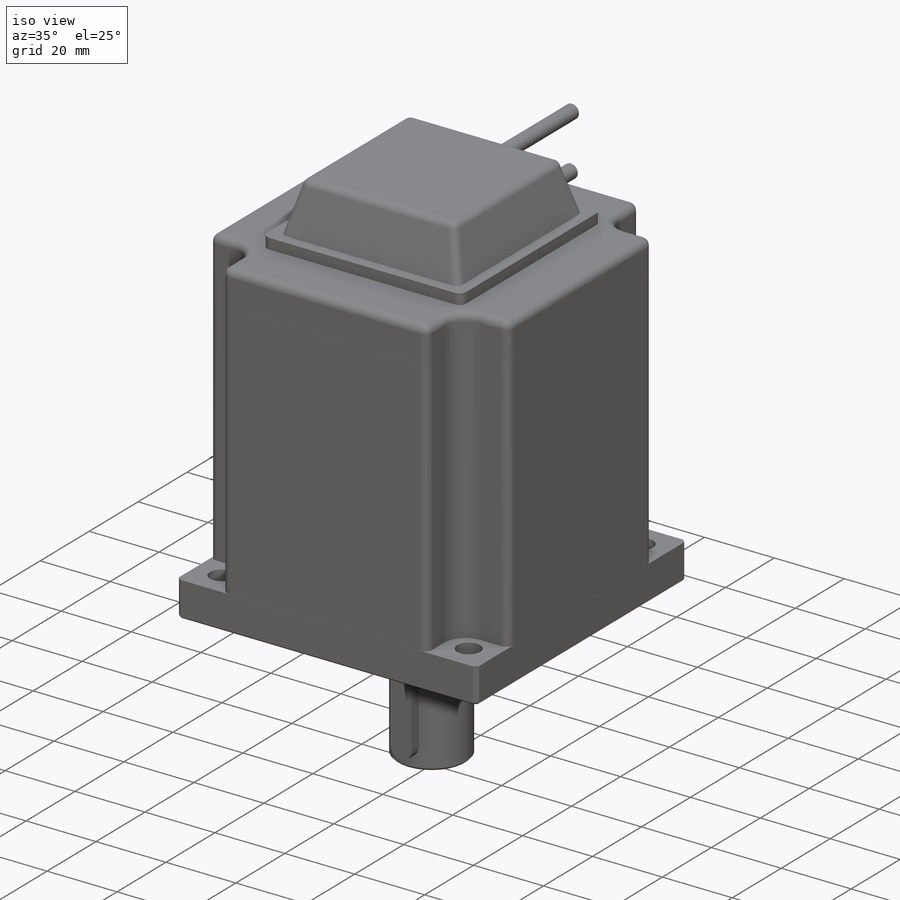
[diagram: iso view]
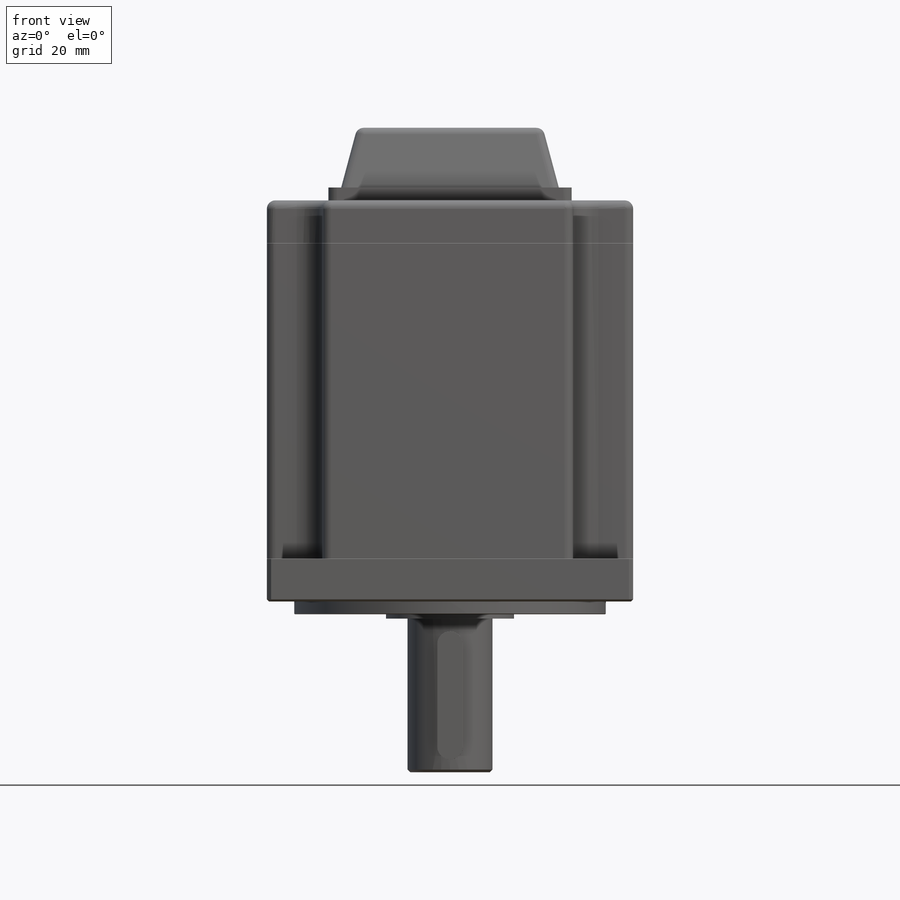
[diagram: front view]
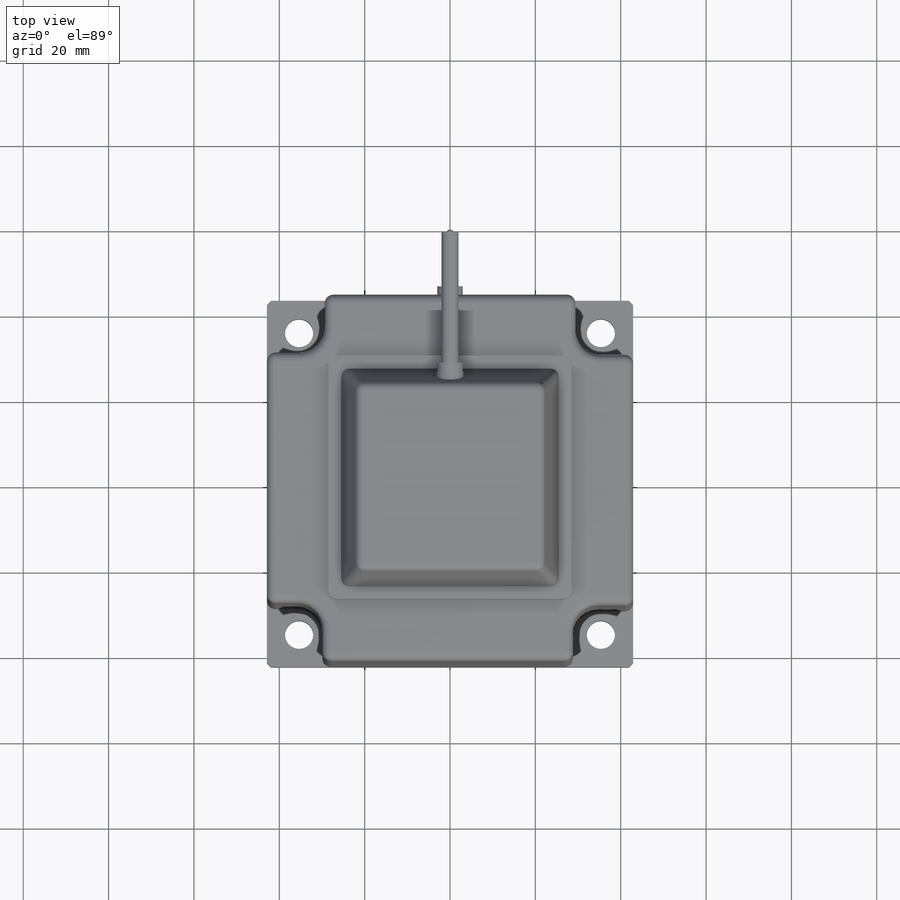
[diagram: top view]
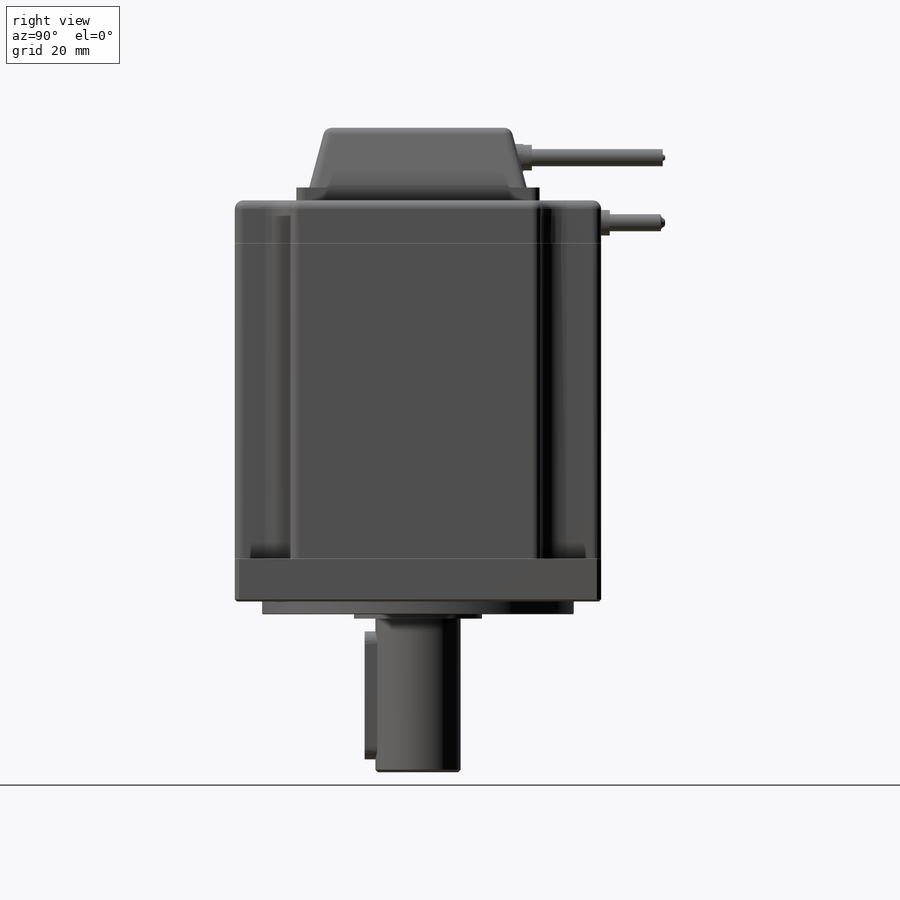
[diagram: right view]
SOLIDWORKS PART (.sldprt)
format: sldprt  version: not decoded by parser v0  size: 993,280 bytes
history: native  units: mm
features: sketch x12, fillet x6, extrude x5, cut_extrude x4, plane x3, revolve x3, chamfer x2, material x1 (+13 scaffold rows collapsed)
feature tree (49):
  scaffold x13  (default folders/planes/origin — collapsed)
  material  "Материал <не указан>"
  plane  "Спереди"
  plane  "Сверху"
  plane  "Справа"
  sketch  "Эскиз1"  dims[c1.D1=50.0mm c1.D2=71.0mm c2.D1=20.0mm c2.D3=30.23mm c2.D4=3.0mm c2.D5=73.02mm c2.D6=120.0mm c2.D9=0.6mm c2.D7=10.0mm c2.D8=0.01mm c2.D10=10.0mm c2.D11=0.01mm c2.D14=0.5mm c2.D15=0.5mm c2.D16=0.2mm c2.D2=94.0mm c2.D12=120.0mm c2.D13=2.0mm c2.D17=45.0mm c3.D3=40.0mm]
  revolve  "Повернуть1"  Angle=360deg
  sketch  "Эскиз2"  dims[c1.D1=85.85mm c2.D1=~50.580547deg]
  cut_extrude  "Вырез-Вытянуть1"  [1 undecoded]
  sketch  "Эскиз3"  dims[c1.D1=6.6mm c1.D2=44.45mm c1.D3=44.45mm c2.D2=~62.861793mm c3.D2=45.0deg c3.D3=50.0mm c3.D4=~69.596985mm]
  cut_extrude  "Вырез-Вытянуть2"  Depth=14.5mm
  chamfer  "Фаска1"  Distance=0.3mm Angle=45deg
  chamfer  "Фаска2"  Distance=0.5mm Angle=45deg
  sketch  "Эскиз4"  dims[D1=6.0mm D2=2.0mm D3=15.0mm D4=2.0mm]
  revolve  "Повернуть2"  Angle=360deg
  sketch  "Эскиз6"  dims[c1.D1=15.0mm c1.D2=10.0mm c1.D3=18.0mm c1.D4=18.0mm c1.D5=15.0mm c1.D6=~156.529703mm c2.D1=15.0mm]
  cut_extrude  "Вырез-Вытянуть4"  Depth=70mm
  sketch  "Эскиз7"  dims[c1.D3=12.0mm c1.D1=44.45mm c1.D2=44.45mm c2.D1=~35.192741mm c3.D1=45.0deg c3.D2=50.0mm c3.D4=10.0mm c3.D5=0.5mm c4.D1=~82.406174mm c5.D1=45.0deg]
  cut_extrude  "Вырез-Вытянуть5"  Depth=156mm
  fillet  "Скругление1"  Radius=2mm
  fillet  "Скругление3"  Radius=2mm
  sketch  "Эскиз8"  dims[c1.D1=6.0mm c1.D2=5.0mm c1.D3=5.0mm c1.D4=15.0mm c2.D2=3.0mm c2.D3=30.0mm]
  extrude  "Вытянуть1"  Depth=12.5mm
  fillet  "Скругление4"  Radius=2mm
  sketch  "Эскиз9"  dims[D1=30.0mm]
  extrude  "Вытянуть2"  Depth=1mm
  sketch  "Эскиз10"  dims[D1=57.0mm]
  extrude  "Вытянуть3"  Depth=3mm
  fillet  "Скругление5"  Radius=2mm
  sketch  "Эскиз11"  dims[D1=3.0mm]
  extrude  "Вытянуть4"  Depth=14mm
  sketch  "Эскиз12"  dims[D1=0.2mm D2=0.2mm]
  revolve  "Повернуть3"  Angle=360deg
  sketch  "Эскиз13"  dims[D1=0.0mm]
  extrude  "Вытянуть5"  [1 undecoded]
  fillet  "Скругление6"  Radius=2mm
  fillet  "Скругление7"  Radius=2mm
decode coverage: 30 of 32 modeling features carry decoded parameters
note: ~ marks probable driven/reference dimensions
note: 2 parameter values undecoded
note: suppression state not decoded; provenance and decode notes live in map.json
